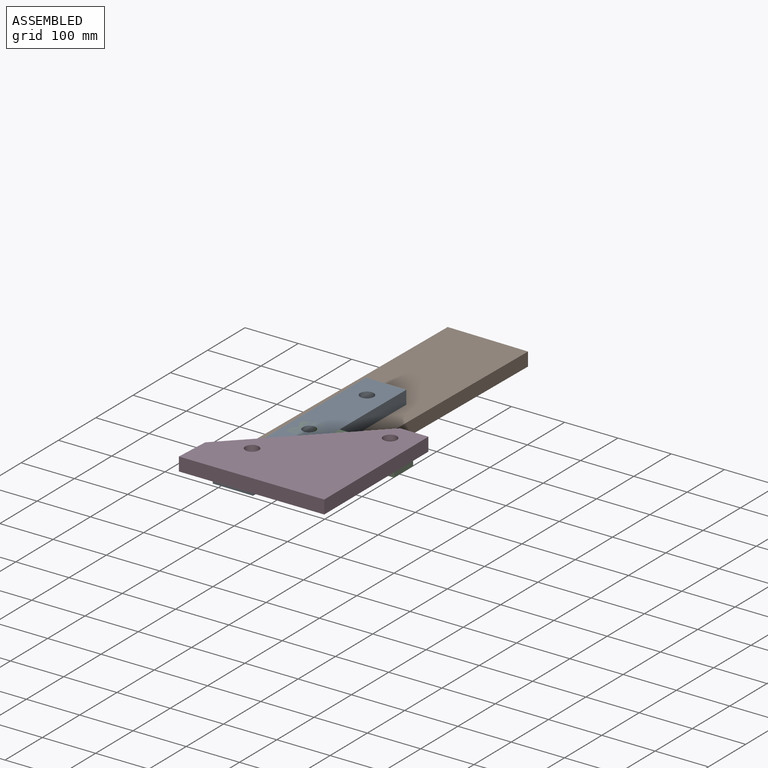
[diagram: assembled view]
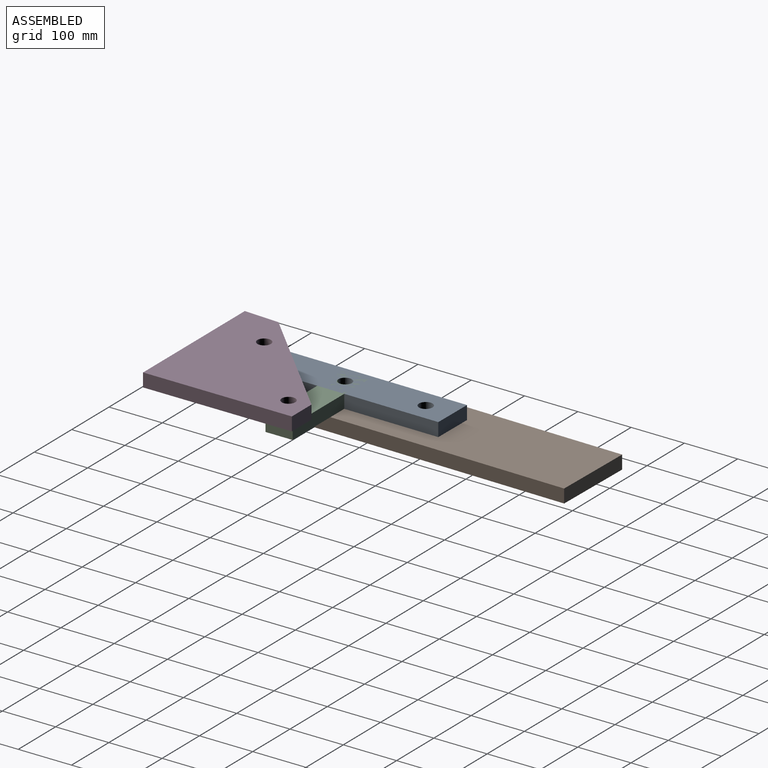
[diagram: assembled view, second angle]
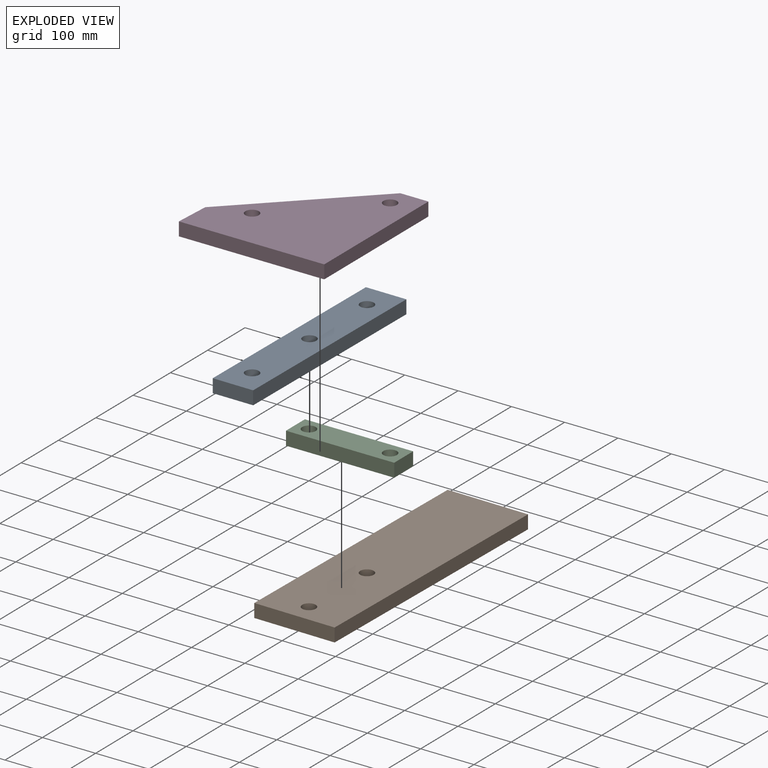
[diagram: exploded view]
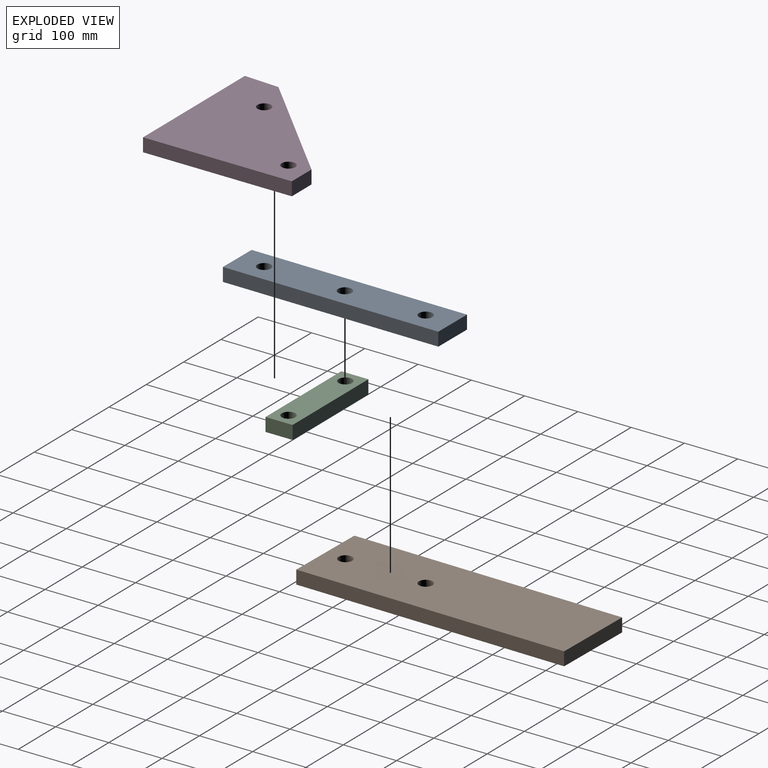
[diagram: exploded view, second angle]
ASSEMBLY  parts=4 mates=4
PART A: 9 faces, bbox 76.2x406.4x25.4 mm
  f0: plane 406.4x25.4mm, normal (1,0,0), area 10322.6mm2, adj f1,f5,f7,f8
  f1: plane 76.2x25.4mm, normal (0,1,0), area 1935.5mm2, adj f0,f2,f7,f8
  f2: plane 406.4x25.4mm, normal (-1,0,0), area 10322.6mm2, adj f1,f5,f7,f8
  f3: cylinder r=12.7mm len=25.4mm, axis (0,0,-1), area 2026.8mm2, adj f7,f8
  f4: cylinder r=12.7mm len=25.4mm, axis (0,0,-1), area 2026.8mm2, adj f7,f8
  f5: plane 76.2x25.4mm, normal (0,-1,0), area 1935.5mm2, adj f0,f2,f7,f8
  f6: cylinder r=12.7mm len=25.4mm, axis (0,0,-1), area 2026.8mm2, adj f7,f8
  f7: plane 406.4x76.2mm, normal (0,0,1), area 29447.6mm2, adj f0,f1,f2,f3,f4,f5,f6
  f8: plane 406.4x76.2mm, normal (0,0,-1), area 29447.6mm2, adj f0,f1,f2,f3,f4,f5,f6
PART B: 8 faces, bbox 152.4x508x25.4 mm
  f0: plane 152.4x25.4mm, normal (0,-1,0), area 3871mm2, adj f1,f4,f6,f7
  f1: plane 508x25.4mm, normal (1,0,0), area 12903.2mm2, adj f0,f2,f6,f7
  f2: plane 152.4x25.4mm, normal (0,1,0), area 3871mm2, adj f1,f4,f6,f7
  f3: cylinder r=12.7mm len=25.4mm, axis (0,0,-1), area 2026.8mm2, adj f6,f7
  f4: plane 508x25.4mm, normal (-1,0,0), area 12903.2mm2, adj f0,f2,f6,f7
  f5: cylinder r=12.7mm len=25.4mm, axis (0,0,-1), area 2026.8mm2, adj f6,f7
  f6: plane 508x152.4mm, normal (0,0,1), area 76405.8mm2, adj f0,f1,f2,f3,f4,f5
  f7: plane 508x152.4mm, normal (0,0,-1), area 76405.8mm2, adj f0,f1,f2,f3,f4,f5
PART C: 8 faces, bbox 203.2x50.8x25.4 mm
  f0: plane 203.2x25.4mm, normal (0,1,0), area 5161.3mm2, adj f1,f4,f6,f7
  f1: plane 50.8x25.4mm, normal (-1,0,0), area 1290.3mm2, adj f0,f2,f6,f7
  f2: plane 203.2x25.4mm, normal (0,-1,0), area 5161.3mm2, adj f1,f4,f6,f7
  f3: cylinder r=12.7mm len=25.4mm, axis (0,0,-1), area 2026.8mm2, adj f6,f7
  f4: plane 50.8x25.4mm, normal (1,0,0), area 1290.3mm2, adj f0,f2,f6,f7
  f5: cylinder r=12.7mm len=25.4mm, axis (0,0,-1), area 2026.8mm2, adj f6,f7
  f6: plane 203.2x50.8mm, normal (0,0,1), area 9309.1mm2, adj f0,f1,f2,f3,f4,f5
  f7: plane 203.2x50.8mm, normal (0,0,-1), area 9309.1mm2, adj f0,f1,f2,f3,f4,f5
PART D: 9 faces, bbox 272.9x279.2x25.4 mm
  f0: plane 216.53x213.72mm, normal (-0.7,0.71,0), area 7727.7mm2, adj f1,f5,f7,f8
  f1: plane 65.5x25.4mm, normal (-1,0.06,0), area 1666.3mm2, adj f0,f2,f7,f8
  f2: plane 272.88x25.4mm, normal (0,-1,0), area 6931mm2, adj f1,f3,f7,f8
  f3: plane 279.22x25.4mm, normal (1,0,0), area 7092.2mm2, adj f2,f5,f7,f8
  f4: cylinder r=12.7mm len=25.4mm, axis (0,0,-1), area 2026.8mm2, adj f7,f8
  f5: plane 52.73x25.4mm, normal (0,1,0), area 1339.3mm2, adj f0,f3,f7,f8
  f6: cylinder r=12.7mm len=25.4mm, axis (0,0,-1), area 2026.8mm2, adj f7,f8
  f7: plane 279.22x272.88mm, normal (0,0,1), area 51149.4mm2, adj f0,f1,f2,f3,f4,f5,f6
  f8: plane 279.22x272.88mm, normal (0,0,-1), area 51149.4mm2, adj f0,f1,f2,f3,f4,f5,f6
PLACE A rot(axis=(0,0,-1),0.4deg) t=(-90.45,59.82,-74.7)mm
PLACE B rot(axis=(0,0,-1),0.8deg) t=(-91.56,59.83,-100.1)mm
PLACE C rot(axis=(0,0,-1),0deg) t=(-91.56,59.83,-74.7)mm
PLACE D t=(-91.56,59.83,-49.3)mm fixed
MATE revolute B.f5 <-> C.f5  axis (0,0,1) through (-91.56,59.83,-74.7)mm
MATE revolute C.f3 <-> D.f6  axis (0,0,1) through (60.84,59.83,-49.3)mm
MATE revolute A.f4 <-> D.f4  axis (0,0,1) through (-91.56,-92.57,-49.3)mm
MATE revolute B.f3 <-> A.f3  axis (0,0,1) through (-89.33,212.22,-74.7)mm
